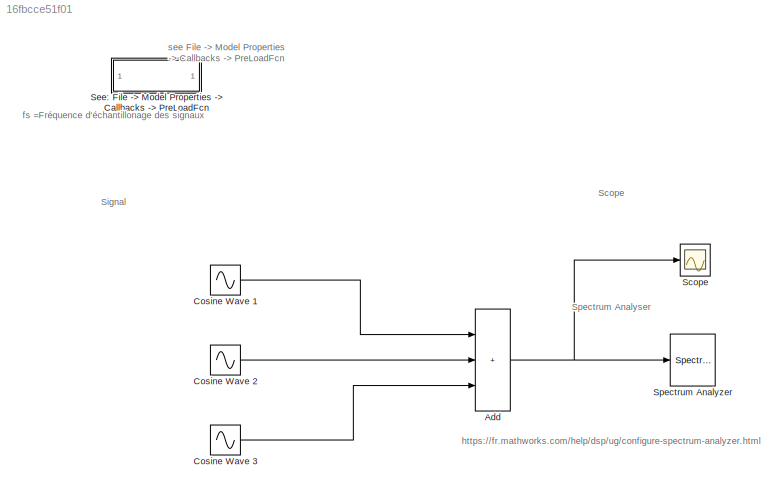
MODEL slx_16fbcce51f01
KIND model
CONFIG AbsTol = auto
CONFIG EnableMultiTasking = off
CONFIG FixedStep = auto
CONFIG InitFcn = %fs=350*3\nfs=2^14
CONFIG MaxStep = auto
CONFIG MinStep = auto
CONFIG PreLoadFcn = fs=2^14\n
CONFIG RelTol = 1e-3
CONFIG SampleTimeConstraint = Unconstrained
CONFIG SolverName = FixedStepDiscrete
CONFIG StartTime = 0.0
CONFIG StopTime = 2
BLOCK [Sum] Add
  IconShape = rectangular
  Inputs = +++
  Ports = [3, 1]
BLOCK [Sin] Cosine Wave 1
  Amplitude = 10
  Frequency = 2*pi*128
  Phase = pi/2
  Ports = [0, 1]
  SampleTime = 1/fs
BLOCK [Sin] Cosine Wave 2
  Frequency = 2*pi*320
  Phase = pi/2
  Ports = [0, 1]
  SampleTime = 1/fs
BLOCK [Sin] Cosine Wave 3
  Amplitude = 4
  Frequency = 2*pi*512
  Phase = pi/2
  Ports = [0, 1]
  SampleTime = 1/fs
BLOCK [Scope] Scope 
  Floating = off
  NumInputPorts = 1
  Ports = [1]
  ScopeSpecificationString = Simulink.scopes.TimeScopeBlockCfg('CurrentConfiguration', extmgr.ConfigurationSet(extmgr.Configuration('Core','General UI',true),extmgr.Configuration('Core','Source UI',true),extmgr.Configuration('Sources','WiredSimulink',true),extmgr.Configuration('Visuals','Time Domain',true,'PlotType','Line','SerializedDisplays',{struct('MinYLimReal','-17.25163','MaxYLimReal','18.58351','YLabelReal','','MinYLim...<+1906ch>
  Tag = Scope
BLOCK [SubSystem] See: File -> Model Properties -> Callbacks -> PreLoadFcn 
  Ports = []
  RequestExecContextInheritance = off
BLOCK [SpectrumAnalyzer] Spectrum Analyzer
  Ports = [1]
  ScopeSpecificationString = spbscopes.SpectrumAnalyzerBlockCfg('CurrentConfiguration', extmgr.ConfigurationSet(extmgr.Configuration('Core','General UI',true,'ShowStatusbar',false,'FigureColor',[0.941176470588235 0.941176470588235 0.941176470588235]),extmgr.Configuration('Core','Source UI',true),extmgr.Configuration('Sources','WiredSimulink',true),extmgr.Configuration('Sources','File',false),extmgr.Configuration('Sources','SP...<+4519ch>
  StartFcn = startfcn_spectrum_analyzer;
  Tag = Spectrum Analyser
ANNOTATION (root): https://fr.mathworks.com/help/dsp/ug/configure-spectrum-analyzer.html
ANNOTATION (root): Scope
ANNOTATION (root): Signal
ANNOTATION (root): Spectrum Analyser
ANNOTATION (root): fs =Fréquence d'échantillonage des signaux
ANNOTATION (root): see File -> Model Properties -> Callbacks -> PreLoadFcn
NET Add:1 -> Scope :1, Spectrum Analyzer:1
LINE Cosine Wave 1:1 -> Add:1
LINE Cosine Wave 2:1 -> Add:2
LINE Cosine Wave 3:1 -> Add:3
note: NET lines group one-source signal fan-out (src -> all destinations, sorted); 1:1 wires keep LINE
